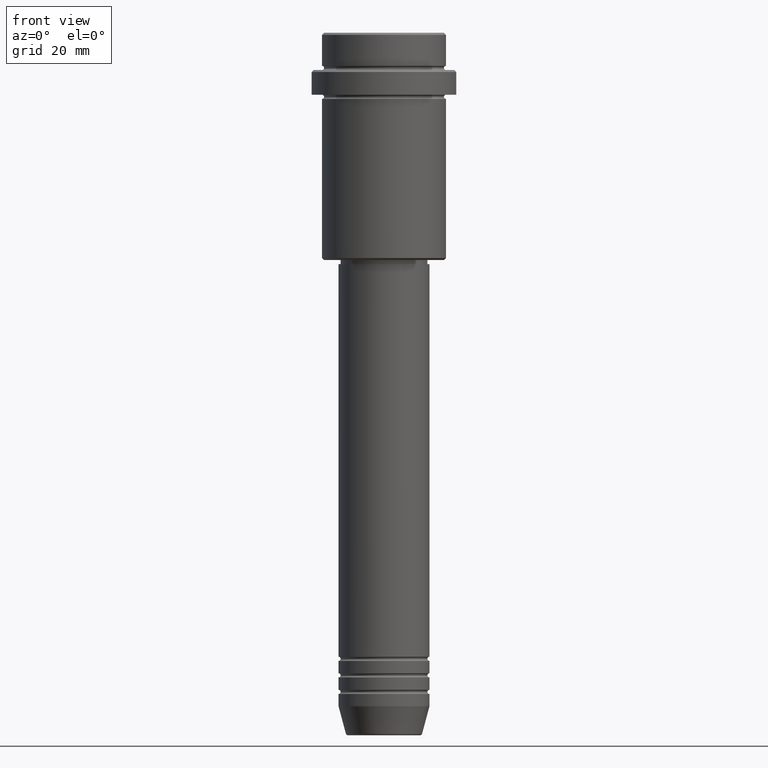
[diagram: clean part render]
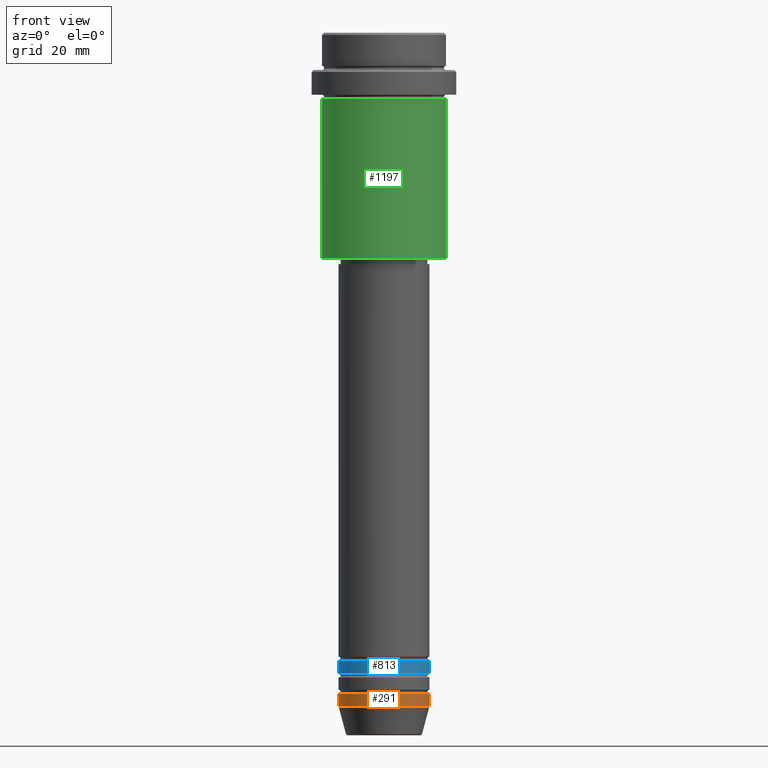
[diagram: same view with three faces highlighted in distinct colors, each labeled with its STEP entity id]
A machine part, front view with three faces highlighted in distinct colors.
Their STEP definitions:

[orange] entity #291 — the highlighted cylindrical surface (partial cylindrical patch) has radius 11 mm, axis along (-0, -0, 1).
#20 = DIRECTION ( 'NONE',  ( -0.000000000000000000, -0.000000000000000000, 1.000000000000000000 ) ) ;
#26 = ORIENTED_EDGE ( 'NONE', *, *, #1214, .T. ) ;
#210 = CARTESIAN_POINT ( 'NONE',  ( 0.000000000000000000, 0.000000000000000000, -159.9999999999999716 ) ) ;
#251 = ORIENTED_EDGE ( 'NONE', *, *, #1005, .F. ) ;
#291 = ADVANCED_FACE ( 'NONE', ( #873 ), #1001, .T. ) ;
#297 = CARTESIAN_POINT ( 'NONE',  ( 11.00000000000000000, 0.000000000000000000, -162.9999999999999716 ) ) ;
#334 = LINE ( 'NONE', #968, #1211 ) ;
#348 = CIRCLE ( 'NONE', #1046, 11.00000000000000000 ) ;
#408 = DIRECTION ( 'NONE',  ( 1.000000000000000000, 0.000000000000000000, 0.000000000000000000 ) ) ;
#425 = CARTESIAN_POINT ( 'NONE',  ( 11.00000000000000000, 0.000000000000000000, 0.000000000000000000 ) ) ;
#456 = AXIS2_PLACEMENT_3D ( 'NONE', #771, #20, #897 ) ;
#514 = VERTEX_POINT ( 'NONE', #651 ) ;
#545 = LINE ( 'NONE', #425, #1018 ) ;
#651 = CARTESIAN_POINT ( 'NONE',  ( 11.00000000000000000, 0.000000000000000000, -159.9999999999999716 ) ) ;
#717 = VERTEX_POINT ( 'NONE', #1258 ) ;
#771 = CARTESIAN_POINT ( 'NONE',  ( 0.000000000000000000, 0.000000000000000000, 0.000000000000000000 ) ) ;
#815 = VERTEX_POINT ( 'NONE', #921 ) ;
#831 = CARTESIAN_POINT ( 'NONE',  ( 0.000000000000000000, 0.000000000000000000, -162.9999999999999716 ) ) ;
#873 = FACE_OUTER_BOUND ( 'NONE', #943, .T. ) ;
#879 = DIRECTION ( 'NONE',  ( -0.000000000000000000, -0.000000000000000000, 1.000000000000000000 ) ) ;
#890 = AXIS2_PLACEMENT_3D ( 'NONE', #210, #973, #1181 ) ;
#897 = DIRECTION ( 'NONE',  ( 1.000000000000000000, 0.000000000000000000, 0.000000000000000000 ) ) ;
#921 = CARTESIAN_POINT ( 'NONE',  ( -11.00000000000000000, 1.347111479062088405E-15, -162.9999999999999716 ) ) ;
#943 = EDGE_LOOP ( 'NONE', ( #251, #26, #1247, #1295 ) ) ;
#948 = EDGE_CURVE ( 'NONE', #1265, #514, #545, .T. ) ;
#968 = CARTESIAN_POINT ( 'NONE',  ( -11.00000000000000000, 1.347111479062088405E-15, 0.000000000000000000 ) ) ;
#973 = DIRECTION ( 'NONE',  ( -0.000000000000000000, -0.000000000000000000, 1.000000000000000000 ) ) ;
#990 = EDGE_CURVE ( 'NONE', #717, #514, #1132, .T. ) ;
#1001 = CYLINDRICAL_SURFACE ( 'NONE', #456, 11.00000000000000000 ) ;
#1005 = EDGE_CURVE ( 'NONE', #815, #717, #334, .T. ) ;
#1018 = VECTOR ( 'NONE', #879, 1000.000000000000000 ) ;
#1046 = AXIS2_PLACEMENT_3D ( 'NONE', #831, #1365, #408 ) ;
#1132 = CIRCLE ( 'NONE', #890, 11.00000000000000000 ) ;
#1181 = DIRECTION ( 'NONE',  ( 1.000000000000000000, 0.000000000000000000, 0.000000000000000000 ) ) ;
#1211 = VECTOR ( 'NONE', #1401, 1000.000000000000000 ) ;
#1214 = EDGE_CURVE ( 'NONE', #815, #1265, #348, .T. ) ;
#1247 = ORIENTED_EDGE ( 'NONE', *, *, #948, .T. ) ;
#1258 = CARTESIAN_POINT ( 'NONE',  ( -11.00000000000000000, 1.347111479062088405E-15, -159.9999999999999716 ) ) ;
#1265 = VERTEX_POINT ( 'NONE', #297 ) ;
#1295 = ORIENTED_EDGE ( 'NONE', *, *, #990, .F. ) ;
#1365 = DIRECTION ( 'NONE',  ( -0.000000000000000000, -0.000000000000000000, 1.000000000000000000 ) ) ;
#1401 = DIRECTION ( 'NONE',  ( -0.000000000000000000, -0.000000000000000000, 1.000000000000000000 ) ) ;

[blue] entity #813 — the highlighted cylindrical surface (partial cylindrical patch) has radius 11 mm, axis along (-0, -0, 1).
#5 = VERTEX_POINT ( 'NONE', #524 ) ;
#127 = DIRECTION ( 'NONE',  ( 1.000000000000000000, 0.000000000000000000, 0.000000000000000000 ) ) ;
#204 = DIRECTION ( 'NONE',  ( -0.000000000000000000, -0.000000000000000000, 1.000000000000000000 ) ) ;
#217 = CARTESIAN_POINT ( 'NONE',  ( 0.000000000000000000, 0.000000000000000000, -151.9999999999998579 ) ) ;
#237 = VERTEX_POINT ( 'NONE', #454 ) ;
#253 = EDGE_CURVE ( 'NONE', #415, #5, #700, .T. ) ;
#276 = CARTESIAN_POINT ( 'NONE',  ( 11.00000000000000000, 0.000000000000000000, -154.9999999999998579 ) ) ;
#376 = EDGE_CURVE ( 'NONE', #1174, #5, #1034, .T. ) ;
#415 = VERTEX_POINT ( 'NONE', #1138 ) ;
#427 = LINE ( 'NONE', #739, #1129 ) ;
#454 = CARTESIAN_POINT ( 'NONE',  ( -11.00000000000000000, 1.347111479062088405E-15, -154.9999999999998579 ) ) ;
#491 = DIRECTION ( 'NONE',  ( -0.000000000000000000, -0.000000000000000000, 1.000000000000000000 ) ) ;
#506 = CYLINDRICAL_SURFACE ( 'NONE', #798, 11.00000000000000000 ) ;
#512 = ORIENTED_EDGE ( 'NONE', *, *, #566, .F. ) ;
#524 = CARTESIAN_POINT ( 'NONE',  ( 11.00000000000000000, 0.000000000000000000, -151.9999999999998579 ) ) ;
#566 = EDGE_CURVE ( 'NONE', #237, #415, #427, .T. ) ;
#581 = DIRECTION ( 'NONE',  ( -0.000000000000000000, -0.000000000000000000, 1.000000000000000000 ) ) ;
#602 = EDGE_LOOP ( 'NONE', ( #512, #847, #1200, #678 ) ) ;
#678 = ORIENTED_EDGE ( 'NONE', *, *, #253, .F. ) ;
#695 = CARTESIAN_POINT ( 'NONE',  ( 11.00000000000000000, 0.000000000000000000, 0.000000000000000000 ) ) ;
#700 = CIRCLE ( 'NONE', #928, 11.00000000000000000 ) ;
#712 = DIRECTION ( 'NONE',  ( 1.000000000000000000, 0.000000000000000000, 0.000000000000000000 ) ) ;
#739 = CARTESIAN_POINT ( 'NONE',  ( -11.00000000000000000, 1.347111479062088405E-15, 0.000000000000000000 ) ) ;
#764 = CARTESIAN_POINT ( 'NONE',  ( 0.000000000000000000, 0.000000000000000000, -154.9999999999998579 ) ) ;
#769 = DIRECTION ( 'NONE',  ( -0.000000000000000000, -0.000000000000000000, 1.000000000000000000 ) ) ;
#798 = AXIS2_PLACEMENT_3D ( 'NONE', #827, #491, #712 ) ;
#813 = ADVANCED_FACE ( 'NONE', ( #818 ), #506, .T. ) ;
#818 = FACE_OUTER_BOUND ( 'NONE', #602, .T. ) ;
#827 = CARTESIAN_POINT ( 'NONE',  ( 0.000000000000000000, 0.000000000000000000, 0.000000000000000000 ) ) ;
#847 = ORIENTED_EDGE ( 'NONE', *, *, #1011, .T. ) ;
#928 = AXIS2_PLACEMENT_3D ( 'NONE', #217, #1223, #127 ) ;
#960 = CIRCLE ( 'NONE', #982, 11.00000000000000000 ) ;
#982 = AXIS2_PLACEMENT_3D ( 'NONE', #764, #769, #1191 ) ;
#1011 = EDGE_CURVE ( 'NONE', #237, #1174, #960, .T. ) ;
#1034 = LINE ( 'NONE', #695, #1227 ) ;
#1129 = VECTOR ( 'NONE', #204, 1000.000000000000000 ) ;
#1138 = CARTESIAN_POINT ( 'NONE',  ( -11.00000000000000000, 1.347111479062088405E-15, -151.9999999999998579 ) ) ;
#1174 = VERTEX_POINT ( 'NONE', #276 ) ;
#1191 = DIRECTION ( 'NONE',  ( 1.000000000000000000, 0.000000000000000000, 0.000000000000000000 ) ) ;
#1200 = ORIENTED_EDGE ( 'NONE', *, *, #376, .T. ) ;
#1223 = DIRECTION ( 'NONE',  ( -0.000000000000000000, -0.000000000000000000, 1.000000000000000000 ) ) ;
#1227 = VECTOR ( 'NONE', #581, 1000.000000000000000 ) ;

[green] entity #1197 — the highlighted cylindrical surface (partial cylindrical patch) has radius 15 mm, axis along (-0, -0, 1).
#2 = LINE ( 'NONE', #1091, #731 ) ;
#39 = DIRECTION ( 'NONE',  ( -1.000000000000000000, 0.000000000000000000, 0.000000000000000000 ) ) ;
#56 = DIRECTION ( 'NONE',  ( -0.000000000000000000, -0.000000000000000000, 1.000000000000000000 ) ) ;
#58 = AXIS2_PLACEMENT_3D ( 'NONE', #147, #379, #814 ) ;
#60 = DIRECTION ( 'NONE',  ( -0.000000000000000000, -0.000000000000000000, 1.000000000000000000 ) ) ;
#103 = AXIS2_PLACEMENT_3D ( 'NONE', #1237, #264, #39 ) ;
#141 = VERTEX_POINT ( 'NONE', #740 ) ;
#147 = CARTESIAN_POINT ( 'NONE',  ( 0.000000000000000000, 0.000000000000000000, -15.99999999999997335 ) ) ;
#172 = DIRECTION ( 'NONE',  ( 1.000000000000000000, 0.000000000000000000, 0.000000000000000000 ) ) ;
#264 = DIRECTION ( 'NONE',  ( -0.000000000000000000, -0.000000000000000000, 1.000000000000000000 ) ) ;
#294 = CARTESIAN_POINT ( 'NONE',  ( 15.00000000000000178, 0.000000000000000000, -15.99999999999997335 ) ) ;
#368 = VERTEX_POINT ( 'NONE', #1119 ) ;
#379 = DIRECTION ( 'NONE',  ( -0.000000000000000000, -0.000000000000000000, 1.000000000000000000 ) ) ;
#431 = EDGE_CURVE ( 'NONE', #368, #668, #729, .T. ) ;
#442 = EDGE_CURVE ( 'NONE', #141, #521, #842, .T. ) ;
#513 = FACE_OUTER_BOUND ( 'NONE', #835, .T. ) ;
#521 = VERTEX_POINT ( 'NONE', #294 ) ;
#649 = DIRECTION ( 'NONE',  ( -0.000000000000000000, -0.000000000000000000, 1.000000000000000000 ) ) ;
#665 = CARTESIAN_POINT ( 'NONE',  ( 15.00000000000000000, 0.000000000000000000, -54.49999999999995737 ) ) ;
#668 = VERTEX_POINT ( 'NONE', #665 ) ;
#729 = CIRCLE ( 'NONE', #103, 15.00000000000000000 ) ;
#731 = VECTOR ( 'NONE', #649, 1000.000000000000000 ) ;
#740 = CARTESIAN_POINT ( 'NONE',  ( -15.00000000000000355, 1.836970198721029983E-15, -15.99999999999997335 ) ) ;
#802 = ORIENTED_EDGE ( 'NONE', *, *, #837, .F. ) ;
#814 = DIRECTION ( 'NONE',  ( 1.000000000000000000, 0.000000000000000000, 0.000000000000000000 ) ) ;
#832 = ORIENTED_EDGE ( 'NONE', *, *, #888, .T. ) ;
#835 = EDGE_LOOP ( 'NONE', ( #802, #1140, #832, #924 ) ) ;
#837 = EDGE_CURVE ( 'NONE', #368, #141, #1039, .T. ) ;
#842 = CIRCLE ( 'NONE', #58, 15.00000000000000178 ) ;
#888 = EDGE_CURVE ( 'NONE', #668, #521, #2, .T. ) ;
#924 = ORIENTED_EDGE ( 'NONE', *, *, #442, .F. ) ;
#925 = CARTESIAN_POINT ( 'NONE',  ( 0.000000000000000000, 0.000000000000000000, 0.000000000000000000 ) ) ;
#936 = CYLINDRICAL_SURFACE ( 'NONE', #1092, 15.00000000000000000 ) ;
#1039 = LINE ( 'NONE', #1143, #1347 ) ;
#1091 = CARTESIAN_POINT ( 'NONE',  ( 15.00000000000000000, 0.000000000000000000, 0.000000000000000000 ) ) ;
#1092 = AXIS2_PLACEMENT_3D ( 'NONE', #925, #56, #172 ) ;
#1119 = CARTESIAN_POINT ( 'NONE',  ( -15.00000000000000000, 1.836970198721029589E-15, -54.49999999999995737 ) ) ;
#1140 = ORIENTED_EDGE ( 'NONE', *, *, #431, .T. ) ;
#1143 = CARTESIAN_POINT ( 'NONE',  ( -15.00000000000000000, 1.836970198721029589E-15, 0.000000000000000000 ) ) ;
#1197 = ADVANCED_FACE ( 'NONE', ( #513 ), #936, .T. ) ;
#1237 = CARTESIAN_POINT ( 'NONE',  ( 0.000000000000000000, 0.000000000000000000, -54.49999999999995737 ) ) ;
#1347 = VECTOR ( 'NONE', #60, 1000.000000000000000 ) ;